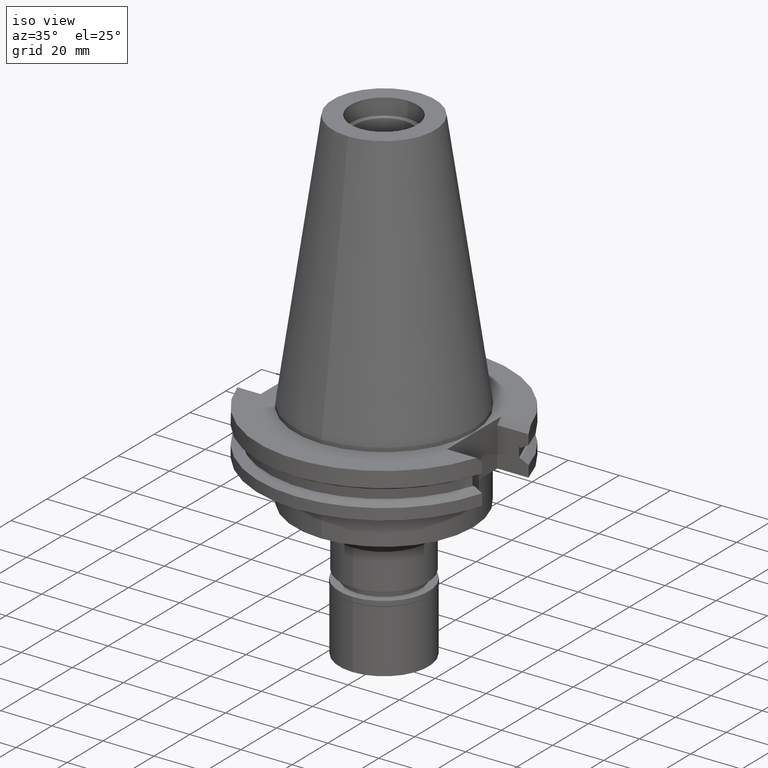
[diagram: clean part render]
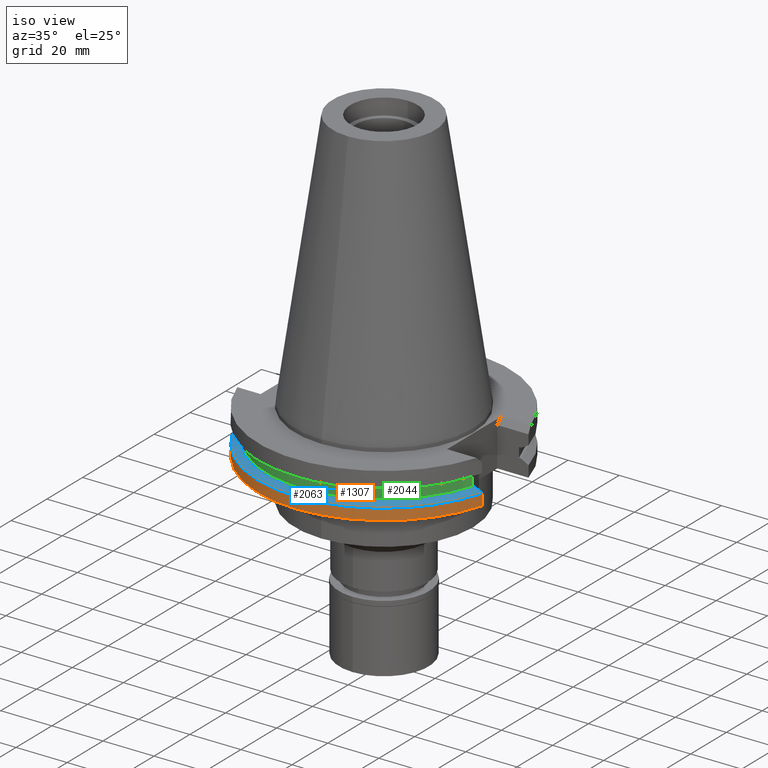
[diagram: same view with three faces highlighted in distinct colors, each labeled with its STEP entity id]
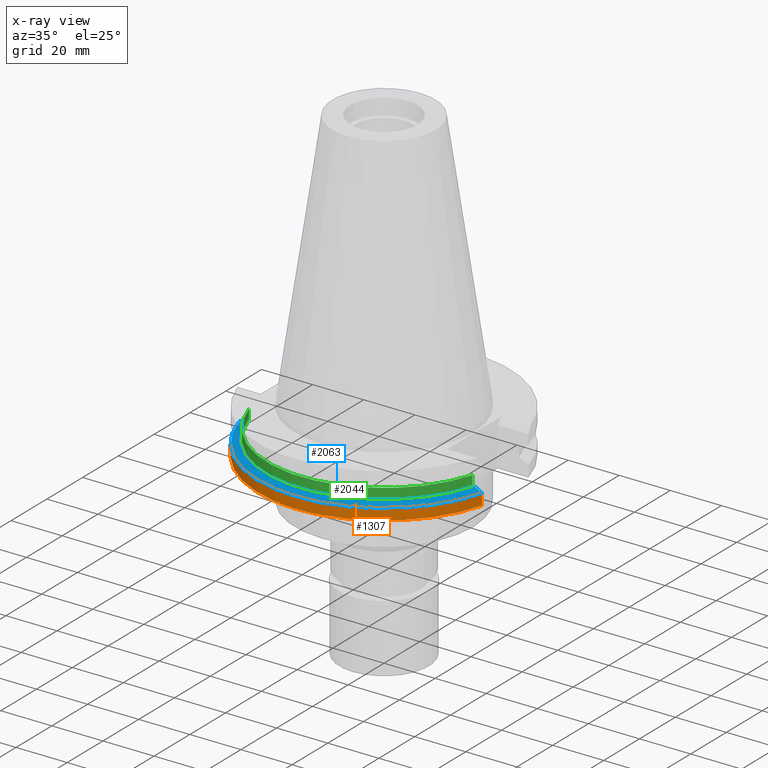
[diagram: x-ray of the same camera — body ghosted, the three highlighted faces saturated]
A machine part, iso view with three faces highlighted in distinct colors.
The next image is the same camera in x-ray (body ghosted, the three faces saturated) — at least one of them is partly hidden behind the body in this view.
Their STEP definitions:

[orange] entity #1307 — the highlighted cylindrical surface (partial cylindrical patch) has radius 49.2125 mm, axis along (0, 0, -1).
#147 = EDGE_CURVE ( 'NONE', #509, #2078, #1328, .T. ) ;
#159 = VERTEX_POINT ( 'NONE', #178 ) ;
#178 = CARTESIAN_POINT ( 'NONE',  ( -47.47671146204000081, -12.95500000000000007, -14.65366676908000088 ) ) ;
#336 = CARTESIAN_POINT ( 'NONE',  ( 47.47671146204000081, -12.95500000000000007, -19.05000000000000071 ) ) ;
#356 = AXIS2_PLACEMENT_3D ( 'NONE', #668, #3197, #418 ) ;
#418 = DIRECTION ( 'NONE',  ( 0.9647287063660957562, -0.2632461264922989486, 0.0000000000000000000 ) ) ;
#430 = ORIENTED_EDGE ( 'NONE', *, *, #502, .F. ) ;
#502 = EDGE_CURVE ( 'NONE', #509, #159, #1126, .T. ) ;
#509 = VERTEX_POINT ( 'NONE', #640 ) ;
#640 = CARTESIAN_POINT ( 'NONE',  ( -47.47671146204000081, -12.95500000000000007, -19.05000000000000071 ) ) ;
#668 = CARTESIAN_POINT ( 'NONE',  ( 0.0000000000000000000, 1.055026073064999954E-14, -14.65366676908000088 ) ) ;
#744 = AXIS2_PLACEMENT_3D ( 'NONE', #2213, #3272, #2743 ) ;
#852 = VECTOR ( 'NONE', #1400, 1000.000000000000000 ) ;
#1031 = CARTESIAN_POINT ( 'NONE',  ( 47.47671146204000081, -12.95500000000000007, -14.65366676908000088 ) ) ;
#1046 = DIRECTION ( 'NONE',  ( 0.0000000000000000000, 0.0000000000000000000, -1.000000000000000000 ) ) ;
#1077 = LINE ( 'NONE', #2091, #1565 ) ;
#1126 = LINE ( 'NONE', #3174, #852 ) ;
#1188 = ORIENTED_EDGE ( 'NONE', *, *, #1794, .T. ) ;
#1199 = VERTEX_POINT ( 'NONE', #1031 ) ;
#1307 = ADVANCED_FACE ( 'NONE', ( #1824 ), #2863, .T. ) ;
#1328 = CIRCLE ( 'NONE', #744, 49.21249999999999858 ) ;
#1384 = DIRECTION ( 'NONE',  ( 0.0000000000000000000, -1.000000000000000000, 0.0000000000000000000 ) ) ;
#1400 = DIRECTION ( 'NONE',  ( -1.341459893287999999E-13, -4.727433961284999965E-14, 1.000000000000000000 ) ) ;
#1565 = VECTOR ( 'NONE', #2618, 1000.000000000000000 ) ;
#1585 = CARTESIAN_POINT ( 'NONE',  ( 0.0000000000000000000, 2.578799997304999674E-14, 110.5750000000000028 ) ) ;
#1794 = EDGE_CURVE ( 'NONE', #1199, #159, #2466, .T. ) ;
#1824 = FACE_OUTER_BOUND ( 'NONE', #3041, .T. ) ;
#1915 = ORIENTED_EDGE ( 'NONE', *, *, #147, .T. ) ;
#2010 = AXIS2_PLACEMENT_3D ( 'NONE', #1585, #1046, #1384 ) ;
#2078 = VERTEX_POINT ( 'NONE', #336 ) ;
#2091 = CARTESIAN_POINT ( 'NONE',  ( 47.47671146204000081, -12.95500000000000007, -14.65366676908000088 ) ) ;
#2213 = CARTESIAN_POINT ( 'NONE',  ( 0.0000000000000000000, 2.578799997304999674E-14, -19.05000000000000071 ) ) ;
#2466 = CIRCLE ( 'NONE', #356, 49.21250000000001279 ) ;
#2527 = ORIENTED_EDGE ( 'NONE', *, *, #3048, .F. ) ;
#2618 = DIRECTION ( 'NONE',  ( -1.244486888953999897E-13, 4.808244798230000260E-14, -1.000000000000000000 ) ) ;
#2743 = DIRECTION ( 'NONE',  ( 0.0000000000000000000, -1.000000000000000000, 0.0000000000000000000 ) ) ;
#2863 = CYLINDRICAL_SURFACE ( 'NONE', #2010, 49.21249999999999858 ) ;
#3041 = EDGE_LOOP ( 'NONE', ( #430, #1915, #2527, #1188 ) ) ;
#3048 = EDGE_CURVE ( 'NONE', #1199, #2078, #1077, .T. ) ;
#3174 = CARTESIAN_POINT ( 'NONE',  ( -47.47671146204000081, -12.95500000000000007, -19.05000000000000071 ) ) ;
#3197 = DIRECTION ( 'NONE',  ( 0.0000000000000000000, 0.0000000000000000000, -1.000000000000000000 ) ) ;
#3272 = DIRECTION ( 'NONE',  ( 0.0000000000000000000, 0.0000000000000000000, 1.000000000000000000 ) ) ;

[blue] entity #2063 — the highlighted conical surface has half-angle 60 deg.
#47 = CARTESIAN_POINT ( 'NONE',  ( -44.58657636813000380, -12.95500000000000007, -13.04749999999999943 ) ) ;
#133 = CONICAL_SURFACE ( 'NONE', #2171, 47.82151877527000039, 1.047197551196400456 ) ;
#159 = VERTEX_POINT ( 'NONE', #178 ) ;
#178 = CARTESIAN_POINT ( 'NONE',  ( -47.47671146204000081, -12.95500000000000007, -14.65366676908000088 ) ) ;
#231 = DIRECTION ( 'NONE',  ( 0.9602855947900087452, -0.2790189535476025329, 0.0000000000000000000 ) ) ;
#269 = CARTESIAN_POINT ( 'NONE',  ( 0.0000000000000000000, 1.055026073064999954E-14, -13.04749999999999943 ) ) ;
#356 = AXIS2_PLACEMENT_3D ( 'NONE', #668, #3197, #418 ) ;
#385 = EDGE_LOOP ( 'NONE', ( #2959, #3263, #2306, #1935 ) ) ;
#418 = DIRECTION ( 'NONE',  ( 0.9647287063660957562, -0.2632461264922989486, 0.0000000000000000000 ) ) ;
#485 = CARTESIAN_POINT ( 'NONE',  ( 45.52193301630200040, -12.95500000000000007, -13.56608150540035851 ) ) ;
#547 = AXIS2_PLACEMENT_3D ( 'NONE', #269, #2508, #231 ) ;
#568 = DIRECTION ( 'NONE',  ( 0.0000000000000000000, 0.0000000000000000000, -1.000000000000000000 ) ) ;
#668 = CARTESIAN_POINT ( 'NONE',  ( 0.0000000000000000000, 1.055026073064999954E-14, -14.65366676908000088 ) ) ;
#754 = B_SPLINE_CURVE_WITH_KNOTS ( 'NONE', 3,
 ( #2046, #1501, #1295, #1009 ),
 .UNSPECIFIED., .F., .F.,
 ( 4, 4 ),
 ( 0.0000000000000000000, 1.000000000000000000 ),
 .UNSPECIFIED. ) ;
#1009 = CARTESIAN_POINT ( 'NONE',  ( -44.58657636813000380, -12.95500000000000007, -13.04749999999999943 ) ) ;
#1031 = CARTESIAN_POINT ( 'NONE',  ( 47.47671146204000081, -12.95500000000000007, -14.65366676908000088 ) ) ;
#1044 = CARTESIAN_POINT ( 'NONE',  ( 44.58657636813000380, -12.95500000000000007, -13.04749999999999943 ) ) ;
#1199 = VERTEX_POINT ( 'NONE', #1031 ) ;
#1260 = CARTESIAN_POINT ( 'NONE',  ( 47.47671146204000081, -12.95500000000000007, -14.65366676908000088 ) ) ;
#1295 = CARTESIAN_POINT ( 'NONE',  ( -45.52193300959797995, -12.95500000000000007, -13.56608150168350591 ) ) ;
#1313 = CARTESIAN_POINT ( 'NONE',  ( 44.58657636813000380, -12.95500000000000007, -13.04749999999999943 ) ) ;
#1351 = B_SPLINE_CURVE_WITH_KNOTS ( 'NONE', 3,
 ( #1313, #485, #2321, #1260 ),
 .UNSPECIFIED., .F., .F.,
 ( 4, 4 ),
 ( 0.0000000000000000000, 1.000000000000000000 ),
 .UNSPECIFIED. ) ;
#1501 = CARTESIAN_POINT ( 'NONE',  ( -46.48531137423464799, -12.95500000000000007, -14.10147042471017365 ) ) ;
#1794 = EDGE_CURVE ( 'NONE', #1199, #159, #2466, .T. ) ;
#1935 = ORIENTED_EDGE ( 'NONE', *, *, #2471, .T. ) ;
#2042 = CIRCLE ( 'NONE', #547, 46.43053755053000486 ) ;
#2046 = CARTESIAN_POINT ( 'NONE',  ( -47.47671146204000081, -12.95500000000000007, -14.65366676908000088 ) ) ;
#2063 = ADVANCED_FACE ( 'NONE', ( #3115 ), #133, .T. ) ;
#2171 = AXIS2_PLACEMENT_3D ( 'NONE', #2404, #568, #3151 ) ;
#2306 = ORIENTED_EDGE ( 'NONE', *, *, #2949, .F. ) ;
#2321 = CARTESIAN_POINT ( 'NONE',  ( 46.48531138093866844, -12.95500000000000007, -14.10147042842702625 ) ) ;
#2404 = CARTESIAN_POINT ( 'NONE',  ( 0.0000000000000000000, 1.055026073064999954E-14, -13.85058338454000015 ) ) ;
#2466 = CIRCLE ( 'NONE', #356, 49.21250000000001279 ) ;
#2471 = EDGE_CURVE ( 'NONE', #2934, #3105, #2042, .T. ) ;
#2508 = DIRECTION ( 'NONE',  ( 0.0000000000000000000, 0.0000000000000000000, -1.000000000000000000 ) ) ;
#2894 = EDGE_CURVE ( 'NONE', #159, #3105, #754, .T. ) ;
#2934 = VERTEX_POINT ( 'NONE', #1044 ) ;
#2949 = EDGE_CURVE ( 'NONE', #2934, #1199, #1351, .T. ) ;
#2959 = ORIENTED_EDGE ( 'NONE', *, *, #2894, .F. ) ;
#3105 = VERTEX_POINT ( 'NONE', #47 ) ;
#3115 = FACE_OUTER_BOUND ( 'NONE', #385, .T. ) ;
#3151 = DIRECTION ( 'NONE',  ( 0.0000000000000000000, -1.000000000000000000, 0.0000000000000000000 ) ) ;
#3197 = DIRECTION ( 'NONE',  ( 0.0000000000000000000, 0.0000000000000000000, -1.000000000000000000 ) ) ;
#3263 = ORIENTED_EDGE ( 'NONE', *, *, #1794, .F. ) ;

[green] entity #2044 — the highlighted cylindrical surface (partial cylindrical patch) has radius 45.645 mm, axis along (0, 0, -1).
#61 = CARTESIAN_POINT ( 'NONE',  ( 0.0000000000000000000, 2.578799997304999674E-14, 110.5750000000000028 ) ) ;
#75 = FACE_OUTER_BOUND ( 'NONE', #2691, .T. ) ;
#95 = CARTESIAN_POINT ( 'NONE',  ( 43.76795631508999662, -12.95500000000000007, -9.207499999999999574 ) ) ;
#152 = DIRECTION ( 'NONE',  ( 0.9588773428654665532, -0.2838207908861898887, 0.0000000000000000000 ) ) ;
#260 = DIRECTION ( 'NONE',  ( 0.0000000000000000000, -1.000000000000000000, 0.0000000000000000000 ) ) ;
#292 = DIRECTION ( 'NONE',  ( 0.0000000000000000000, 0.0000000000000000000, 1.000000000000000000 ) ) ;
#333 = LINE ( 'NONE', #1387, #2474 ) ;
#353 = CIRCLE ( 'NONE', #2666, 45.64500000000001734 ) ;
#405 = LINE ( 'NONE', #1938, #1673 ) ;
#426 = DIRECTION ( 'NONE',  ( 0.0000000000000000000, 0.0000000000000000000, -1.000000000000000000 ) ) ;
#429 = VERTEX_POINT ( 'NONE', #95 ) ;
#476 = ORIENTED_EDGE ( 'NONE', *, *, #2771, .F. ) ;
#507 = ORIENTED_EDGE ( 'NONE', *, *, #2946, .T. ) ;
#771 = VERTEX_POINT ( 'NONE', #1115 ) ;
#782 = EDGE_CURVE ( 'NONE', #429, #930, #333, .T. ) ;
#930 = VERTEX_POINT ( 'NONE', #3176 ) ;
#1115 = CARTESIAN_POINT ( 'NONE',  ( -43.76795631508999662, -12.95500000000000007, -9.207499999999999574 ) ) ;
#1357 = DIRECTION ( 'NONE',  ( 0.0000000000000000000, 0.0000000000000000000, -1.000000000000000000 ) ) ;
#1387 = CARTESIAN_POINT ( 'NONE',  ( 43.76795631508999662, -12.95500000000000007, -9.207499999999999574 ) ) ;
#1391 = ORIENTED_EDGE ( 'NONE', *, *, #782, .F. ) ;
#1435 = DIRECTION ( 'NONE',  ( 0.0000000000000000000, 0.0000000000000000000, 1.000000000000000000 ) ) ;
#1452 = EDGE_CURVE ( 'NONE', #429, #771, #353, .T. ) ;
#1543 = CARTESIAN_POINT ( 'NONE',  ( -43.76795631508999662, -12.95500000000000007, -13.04749999999999943 ) ) ;
#1625 = ORIENTED_EDGE ( 'NONE', *, *, #1452, .T. ) ;
#1627 = CIRCLE ( 'NONE', #3229, 45.64499999999999602 ) ;
#1673 = VECTOR ( 'NONE', #1435, 1000.000000000000000 ) ;
#1927 = VERTEX_POINT ( 'NONE', #1543 ) ;
#1938 = CARTESIAN_POINT ( 'NONE',  ( -43.76795631508999662, -12.95500000000000007, -13.04749999999999943 ) ) ;
#2044 = ADVANCED_FACE ( 'NONE', ( #75 ), #2120, .T. ) ;
#2120 = CYLINDRICAL_SURFACE ( 'NONE', #3142, 45.64499999999999602 ) ;
#2182 = CARTESIAN_POINT ( 'NONE',  ( 0.0000000000000000000, 2.578799997304999674E-14, -9.207499999999999574 ) ) ;
#2474 = VECTOR ( 'NONE', #1357, 1000.000000000000000 ) ;
#2645 = DIRECTION ( 'NONE',  ( 0.0000000000000000000, -1.000000000000000000, 0.0000000000000000000 ) ) ;
#2666 = AXIS2_PLACEMENT_3D ( 'NONE', #2182, #426, #152 ) ;
#2691 = EDGE_LOOP ( 'NONE', ( #476, #507, #1391, #1625 ) ) ;
#2771 = EDGE_CURVE ( 'NONE', #1927, #771, #405, .T. ) ;
#2795 = CARTESIAN_POINT ( 'NONE',  ( 0.0000000000000000000, 2.578799997304999674E-14, -13.04749999999999943 ) ) ;
#2842 = DIRECTION ( 'NONE',  ( 0.0000000000000000000, 0.0000000000000000000, -1.000000000000000000 ) ) ;
#2946 = EDGE_CURVE ( 'NONE', #1927, #930, #1627, .T. ) ;
#3142 = AXIS2_PLACEMENT_3D ( 'NONE', #61, #2842, #2645 ) ;
#3176 = CARTESIAN_POINT ( 'NONE',  ( 43.76795631508999662, -12.95500000000000007, -13.04749999999999943 ) ) ;
#3229 = AXIS2_PLACEMENT_3D ( 'NONE', #2795, #292, #260 ) ;